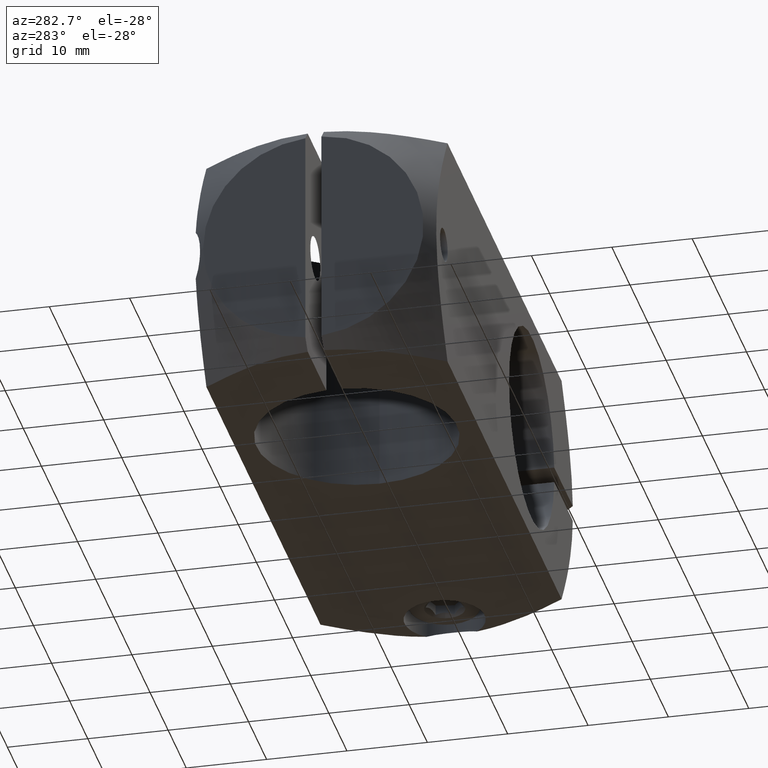
[diagram: clean part render]
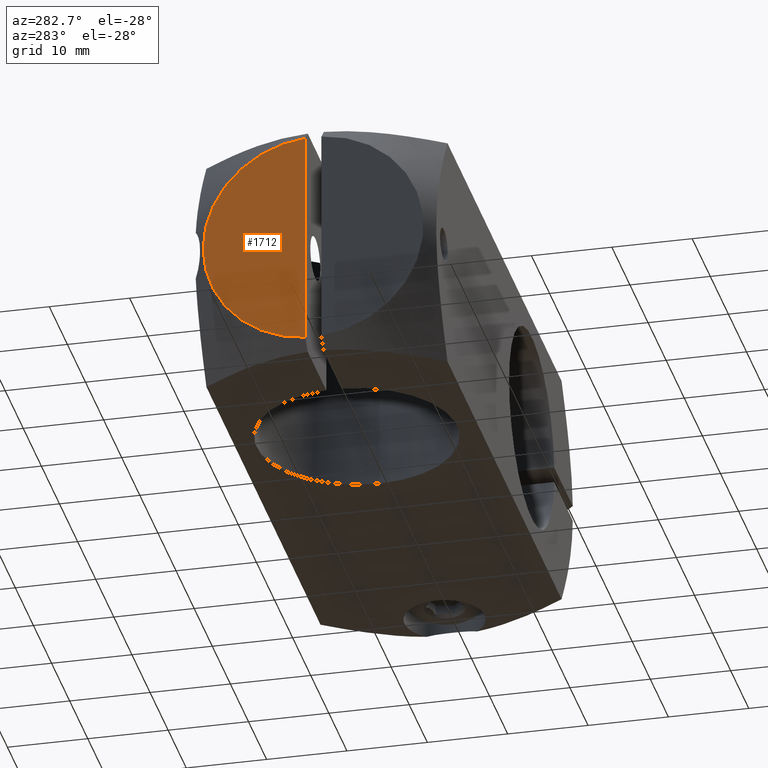
[diagram: same view with one face highlighted and labeled with its STEP entity id]
A machine part, auxiliary view. The second image highlights one B-rep face of the part: STEP entity #1712.
In plain terms, the highlighted planar face has unit normal (1, 0, -0).
Its self-contained STEP definition (entity closure, byte-faithful):
#88 = CARTESIAN_POINT ( 'NONE',  ( -20.60404504437318707, -7.489728769479425452, 91.84039175949929756 ) ) ;
#285 = CARTESIAN_POINT ( 'NONE',  ( -20.60404504437319062, 5.223509915103197621, 78.16369555892570986 ) ) ;
#352 = DIRECTION ( 'NONE',  ( -1.000000000000000000, -2.017409523771872762E-16, -1.127807741219663211E-16 ) ) ;
#407 = VERTEX_POINT ( 'NONE', #285 ) ;
#544 = PLANE ( 'NONE',  #1524 ) ;
#554 = DIRECTION ( 'NONE',  ( 1.000000000000000000, 4.625929269271485914E-16, -0.000000000000000000 ) ) ;
#595 = DIRECTION ( 'NONE',  ( -1.000000000000000000, -2.017409523771872762E-16, -1.127807741219663211E-16 ) ) ;
#708 = DIRECTION ( 'NONE',  ( -4.625929269271485914E-16, 1.000000000000000000, 0.000000000000000000 ) ) ;
#709 = VERTEX_POINT ( 'NONE', #88 ) ;
#773 = ORIENTED_EDGE ( 'NONE', *, *, #1835, .F. ) ;
#802 = EDGE_LOOP ( 'NONE', ( #773, #932, #2222 ) ) ;
#932 = ORIENTED_EDGE ( 'NONE', *, *, #2143, .T. ) ;
#979 = CARTESIAN_POINT ( 'NONE',  ( -20.60404504437318707, -7.489728769479425452, 64.48699935835212216 ) ) ;
#1043 = CARTESIAN_POINT ( 'NONE',  ( -20.60404504437317286, 6.510306479506761335, 93.16369555892570986 ) ) ;
#1051 = DIRECTION ( 'NONE',  ( 2.530004727376607490E-16, -1.000000000000000000, 0.000000000000000000 ) ) ;
#1060 = VECTOR ( 'NONE', #1288, 1000.000000000000000 ) ;
#1161 = VERTEX_POINT ( 'NONE', #979 ) ;
#1212 = CIRCLE ( 'NONE', #2215, 13.71320343559644606 ) ;
#1288 = DIRECTION ( 'NONE',  ( 0.000000000000000000, 0.000000000000000000, -1.000000000000000000 ) ) ;
#1354 = CIRCLE ( 'NONE', #1703, 13.71320343559644606 ) ;
#1445 = LINE ( 'NONE', #1462, #1060 ) ;
#1462 = CARTESIAN_POINT ( 'NONE',  ( -20.60404504437316575, -7.489728769479425452, 63.16269555892571930 ) ) ;
#1474 = CARTESIAN_POINT ( 'NONE',  ( -20.60404504437318707, -8.489693520493247547, 78.16369555892570986 ) ) ;
#1475 = EDGE_CURVE ( 'NONE', #407, #1161, #1354, .T. ) ;
#1524 = AXIS2_PLACEMENT_3D ( 'NONE', #1043, #554, #708 ) ;
#1703 = AXIS2_PLACEMENT_3D ( 'NONE', #1474, #595, #1781 ) ;
#1712 = ADVANCED_FACE ( 'NONE', ( #2085 ), #544, .F. ) ;
#1781 = DIRECTION ( 'NONE',  ( 2.530004727376607490E-16, -1.000000000000000000, 0.000000000000000000 ) ) ;
#1835 = EDGE_CURVE ( 'NONE', #709, #1161, #1445, .T. ) ;
#2070 = CARTESIAN_POINT ( 'NONE',  ( -20.60404504437318707, -8.489693520493247547, 78.16369555892570986 ) ) ;
#2085 = FACE_OUTER_BOUND ( 'NONE', #802, .T. ) ;
#2143 = EDGE_CURVE ( 'NONE', #709, #407, #1212, .T. ) ;
#2215 = AXIS2_PLACEMENT_3D ( 'NONE', #2070, #352, #1051 ) ;
#2222 = ORIENTED_EDGE ( 'NONE', *, *, #1475, .T. ) ;